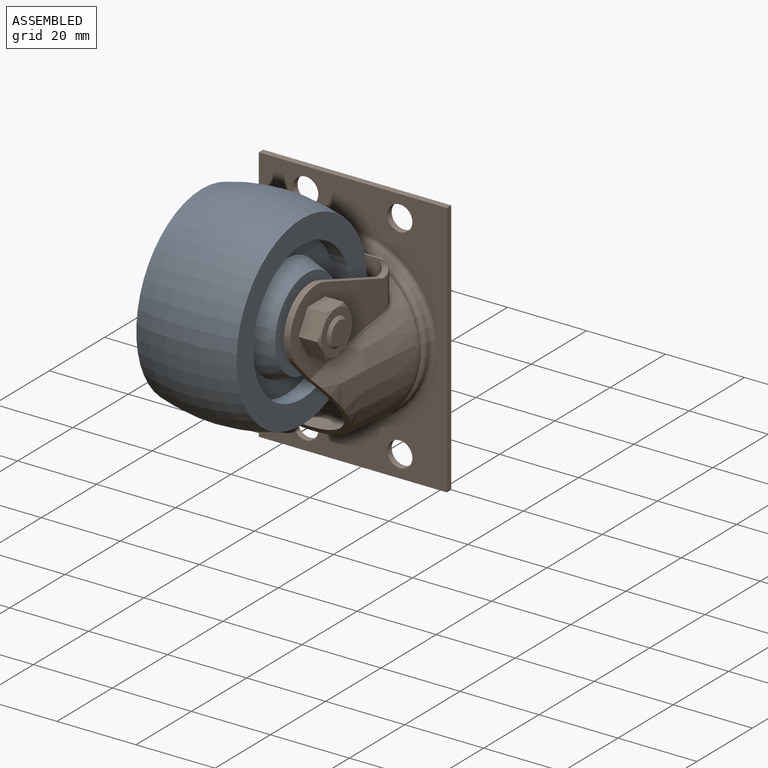
[diagram: assembled view]
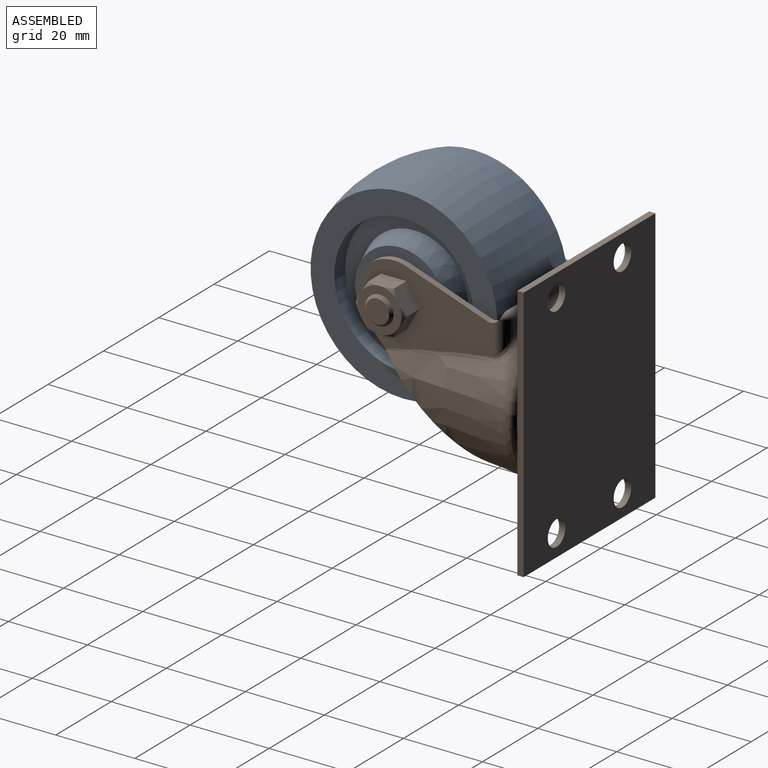
[diagram: assembled view, second angle]
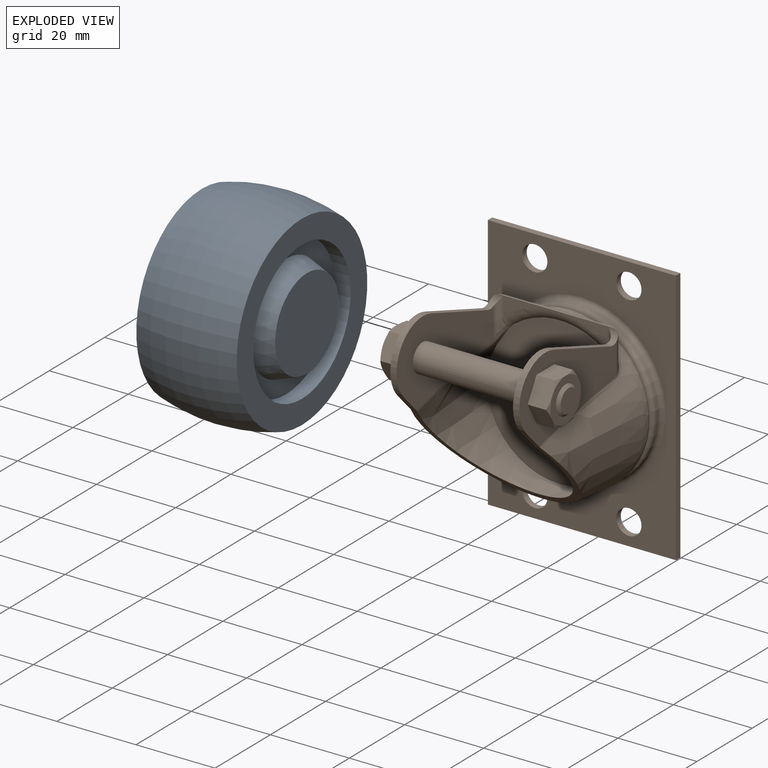
[diagram: exploded view]
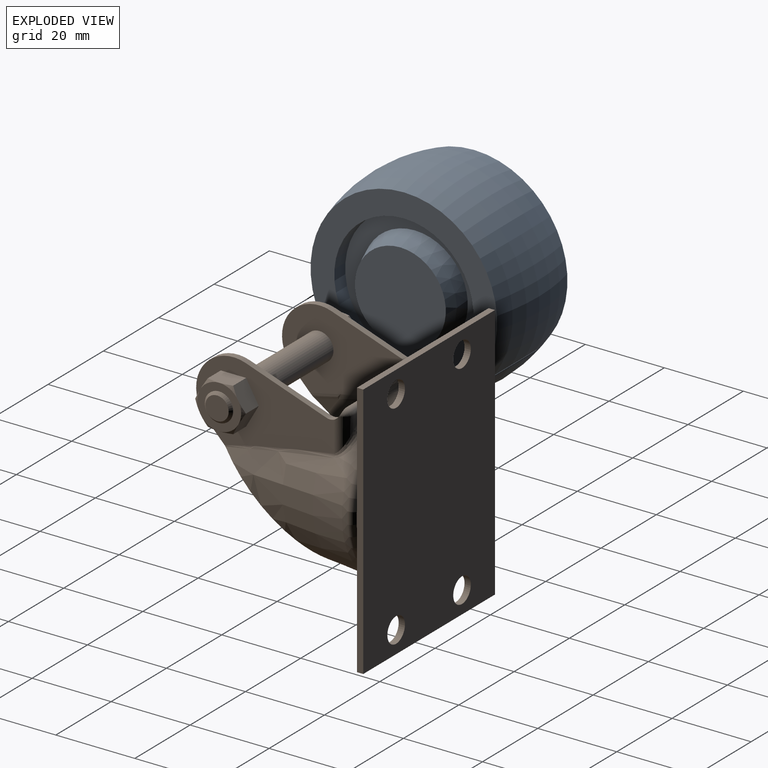
[diagram: exploded view, second angle]
ASSEMBLY  parts=2 mates=2
PART A: 11 faces, bbox 27.9x50.8x50.8 mm
  f0: cylinder r=17.63mm len=35.26mm, axis (-1,0,0), area 438.9mm2, adj f9,f10
  f1: cone r=13.41mm half-angle=20deg, axis (1,0,0), area 435.9mm2, adj f8,f9
  f2: cone r=11.51mm half-angle=20deg, axis (-1,0,0), area 435.9mm2, adj f6,f7
  f3: cylinder r=17.63mm len=35.26mm, axis (-1,0,0), area 438.9mm2, adj f5,f6
  f4: revolved ~50.8x50.8mm, area 4010.4mm2, adj f5,f10
  f5: plane 47.24x47.24mm, normal (1,0,0), area 776.8mm2, adj f3,f4
  f6: plane 35.26x35.26mm, normal (1,0,0), area 411.2mm2, adj f2,f3
  f7: plane 23.01x23.01mm, normal (1,0,0), area 415.9mm2, adj f2
  f8: plane 23.01x23.01mm, normal (-1,0,0), area 415.9mm2, adj f1
  f9: plane 35.26x35.26mm, normal (-1,0,0), area 411.2mm2, adj f0,f1
  f10: plane 47.24x47.24mm, normal (-1,0,0), area 776.8mm2, adj f0,f4
PART B: 88 faces, bbox 48.9x48.5x66 mm
  f0: cylinder r=3.58mm len=29.46mm, axis (-1,0,0), area 661.8mm2, adj f45,f46
  f1: torus R=19.05mm, axis (0,-1,0), area 223.1mm2, adj f3,f81
  f2: torus R=21.34mm, axis (0,-1,0), area 232.5mm2, adj f3,f82
  f3: cylinder r=20.19mm len=40.39mm, axis (0,1,0), area 112.8mm2, adj f1,f2
  f4: cylinder r=3.17mm len=6.35mm, axis (0,1,0), area 31.7mm2, adj f82,f87
  f5: cylinder r=3.17mm len=6.35mm, axis (0,1,0), area 31.7mm2, adj f82,f87
  f6: cylinder r=3.17mm len=6.35mm, axis (0,1,0), area 31.7mm2, adj f82,f87
  f7: cylinder r=3.17mm len=6.35mm, axis (0,1,0), area 31.7mm2, adj f82,f87
  f8: torus R=18.41mm, axis (0,1,0), area 343mm2, adj f9,f81
  f9: cylinder r=20.19mm len=40.39mm, axis (0,1,0), area 177.2mm2, adj f8,f13,f54,f55,f56
  f10: cone r=18.61mm half-angle=5deg, axis (0,1,0), area 1259.1mm2, adj f62,f64,f68,f69,f70,f73
  f11: cylinder r=9.45mm len=16mm, axis (-1,0,0), area 40mm2, adj f31,f46,f58,f62
  f12: cylinder r=9.45mm len=16mm, axis (-1,0,0), area 40mm2, adj f44,f45,f59,f62
  f13: cone r=20.19mm half-angle=5deg, axis (0,1,0), area 1471.7mm2, adj f9,f51,f52,f53,f57,f62
  f14: cone r=2.94mm half-angle=45deg, axis (-1,0,0), area 18.4mm2, adj f15,f16
  f15: cylinder r=3.58mm len=7.15mm, axis (-1,0,0), area 2.9mm2, adj f14,f17
  f16: plane 5.88x5.88mm, normal (1,0,0), area 27.2mm2, adj f14
  f17: plane 11.11x11.11mm, normal (1,0,0), area 56.8mm2, adj f15,f38,f39,f40,f41,f42,f43
  f18: plane 6.08x5.68mm, normal (0,0.87,-0.5), area 32mm2, adj f19,f23,f28,f29,f31
  f19: plane 6.08x5.68mm, normal (0,0.87,0.5), area 32mm2, adj f18,f20,f27,f28,f31
  f20: plane 6.95x5.69mm, normal (0,0,1), area 32mm2, adj f19,f21,f26,f27,f31
  f21: plane 6.08x5.68mm, normal (0,-0.87,0.5), area 32mm2, adj f20,f22,f25,f26,f31
  f22: plane 6.08x5.68mm, normal (0,-0.87,-0.5), area 32mm2, adj f21,f23,f24,f25,f31
  f23: plane 6.95x5.69mm, normal (0,0,-1), area 32mm2, adj f18,f22,f24,f29,f31
  f24: cone r=5.56mm half-angle=60deg, axis (1,0,0), area 3mm2, adj f22,f23,f30
  f25: cone r=5.56mm half-angle=60deg, axis (1,0,0), area 3mm2, adj f21,f22,f30
  f26: cone r=5.56mm half-angle=60deg, axis (1,0,0), area 3mm2, adj f20,f21,f30
  f27: cone r=5.56mm half-angle=60deg, axis (1,0,0), area 3mm2, adj f19,f20,f30
  f28: cone r=5.56mm half-angle=60deg, axis (1,0,0), area 3mm2, adj f18,f19,f30
  f29: cone r=5.56mm half-angle=60deg, axis (1,0,0), area 3mm2, adj f18,f23,f30
  f30: plane 11.11x11.11mm, normal (-1,0,0), area 97mm2, adj f24,f25,f26,f27,f28,f29
  f31: plane 34.85x20.71mm, normal (-1,0,0), area 387.6mm2, adj f11,f18,f19,f20,f21,f22,f23,f49
  f32: plane 6.08x5.68mm, normal (0,0.87,-0.5), area 32mm2, adj f33,f37,f42,f43,f44
  f33: plane 6.08x5.68mm, normal (0,0.87,0.5), area 32mm2, adj f32,f34,f41,f42,f44
  f34: plane 6.95x5.69mm, normal (0,0,1), area 32mm2, adj f33,f35,f40,f41,f44
  f35: plane 6.08x5.68mm, normal (0,-0.87,0.5), area 32mm2, adj f34,f36,f39,f40,f44
  f36: plane 6.08x5.68mm, normal (0,-0.87,-0.5), area 32mm2, adj f35,f37,f38,f39,f44
  f37: plane 6.95x5.69mm, normal (0,0,-1), area 32mm2, adj f32,f36,f38,f43,f44
  f38: cone r=5.56mm half-angle=60deg, axis (-1,0,0), area 3mm2, adj f17,f36,f37
  f39: cone r=5.56mm half-angle=60deg, axis (-1,0,0), area 3mm2, adj f17,f35,f36
  f40: cone r=5.56mm half-angle=60deg, axis (-1,0,0), area 3mm2, adj f17,f34,f35
  f41: cone r=5.56mm half-angle=60deg, axis (-1,0,0), area 3mm2, adj f17,f33,f34
  f42: cone r=5.56mm half-angle=60deg, axis (-1,0,0), area 3mm2, adj f17,f32,f33
  f43: cone r=5.56mm half-angle=60deg, axis (-1,0,0), area 3mm2, adj f17,f32,f37
  f44: plane 34.85x20.71mm, normal (1,0,0), area 387.6mm2, adj f12,f32,f33,f34,f35,f36,f37,f50
  f45: plane 34.85x20.71mm, normal (-1,0,0), area 454.4mm2, adj f0,f12,f59,f61,f62,f70,f71
  f46: plane 34.85x20.71mm, normal (1,0,0), area 454.4mm2, adj f0,f11,f58,f60,f62,f73,f74
  f47: plane 5.14x2.89mm, normal (0,1,0), area 6.6mm2, adj f50,f55,f77
  f48: plane 5.14x2.89mm, normal (0,1,0), area 6.6mm2, adj f49,f55,f79
  f49: cylinder r=3.17mm len=8.59mm, axis (0,0,1), area 28.3mm2, adj f31,f48,f56,f57,f60,f80
  f50: cylinder r=3.17mm len=8.59mm, axis (0,0,-1), area 28.3mm2, adj f44,f47,f53,f54,f61,f76
  f51: bspline ~27.96x6.02mm, area 21.3mm2, adj f13,f44,f53,f62
  f52: bspline ~27.96x6.02mm, area 21.3mm2, adj f13,f31,f57,f62
  f53: bspline ~5.64x4.76mm, area 11.2mm2, adj f13,f50,f51,f54
  f54: bspline ~2.13x1.72mm, area 2.9mm2, adj f9,f50,f53,f55
  f55: torus R=21.78mm, axis (0,-1,0), area 58.4mm2, adj f9,f47,f48,f54,f56,f78
  f56: bspline ~2.13x1.72mm, area 2.9mm2, adj f9,f49,f55,f57
  f57: bspline ~5.64x4.76mm, area 11.2mm2, adj f13,f49,f52,f56
  f58: plane 20.47x7.06mm, normal (0,0.33,0.95), area 34.4mm2, adj f11,f31,f46,f60
  f59: plane 20.47x7.06mm, normal (0,0.33,0.95), area 34.4mm2, adj f12,f44,f45,f61
  f60: cylinder r=2.59mm len=3.44mm, axis (-1,0,0), area 8.3mm2, adj f31,f46,f49,f58,f63,f74,f80
  f61: cylinder r=2.59mm len=3.44mm, axis (-1,0,0), area 8.3mm2, adj f44,f45,f50,f59,f63,f71,f76
  f62: plane 35.9x30.45mm, normal (0,-0.72,-0.69), area 181.7mm2, adj f10,f11,f12,f13,f31,f44,f45,f46
  f63: plane 27.2x0.46mm, normal (0,0,1), area 5mm2, adj f60,f61,f72,f75,f76,f77,f78,f79
  f64: plane 38.4x37.83mm, normal (0,-1,0), area 1086.9mm2, adj f10,f65,f66,f67,f68,f69
  f65: torus R=21.78mm, axis (0,-1,0), area 87.3mm2, adj f64,f66,f67,f72,f75
  f66: bspline ~2.95x2.05mm, area 2.7mm2, adj f64,f65,f69,f74
  f67: bspline ~2.95x2.05mm, area 2.7mm2, adj f64,f65,f68,f71
  f68: bspline ~6.5x4.9mm, area 15.9mm2, adj f10,f64,f67,f70,f71
  f69: bspline ~6.5x4.9mm, area 15.8mm2, adj f10,f64,f66,f73,f74
  f70: bspline ~28.1x6.54mm, area 42.3mm2, adj f10,f45,f62,f68
  f71: cylinder r=1.59mm len=10.12mm, axis (0,0,-1), area 15.2mm2, adj f45,f61,f67,f68,f72
  f72: plane 13.14x4.41mm, normal (0,-1,0), area 18.5mm2, adj f63,f65,f71
  f73: bspline ~28.1x6.54mm, area 42.3mm2, adj f10,f46,f62,f69
  f74: cylinder r=1.59mm len=10.12mm, axis (0,0,1), area 15.2mm2, adj f46,f60,f66,f69,f75
  f75: plane 13.14x4.41mm, normal (0,-1,0), area 18.5mm2, adj f63,f65,f74
  f76: torus R=1.65mm, axis (0,0,1), area 6mm2, adj f50,f61,f63,f77
  f77: cylinder r=1.52mm len=5.14mm, axis (1,0,0), area 12.3mm2, adj f47,f63,f76,f78
  f78: bspline ~16.01x1.73mm, area 30.2mm2, adj f55,f63,f77,f79
  f79: cylinder r=1.52mm len=5.14mm, axis (1,0,0), area 12.3mm2, adj f48,f63,f78,f80
  f80: torus R=1.65mm, axis (0,0,1), area 6mm2, adj f49,f60,f63,f79
  f81: plane 38.1x38.1mm, normal (0,-1,0), area 74.7mm2, adj f1,f8
  f82: plane 65.09x47.63mm, normal (0,-1,0), area 1543mm2, adj f2,f4,f5,f6,f7,f83,f84,f85
  f83: plane 65.09x1.59mm, normal (-1,0,0), area 103.3mm2, adj f82,f84,f86,f87
  f84: plane 47.63x1.59mm, normal (0,0,-1), area 75.6mm2, adj f82,f83,f85,f87
  f85: plane 65.09x1.59mm, normal (1,0,0), area 103.3mm2, adj f82,f84,f86,f87
  f86: plane 47.63x1.59mm, normal (0,0,1), area 75.6mm2, adj f82,f83,f85,f87
  f87: plane 65.09x47.63mm, normal (0,1,0), area 2973.1mm2, adj f4,f5,f6,f7,f83,f84,f85,f86
PLACE A t=(0,-1.01,15.04)mm
PLACE B t=(0,-1.01,15.04)mm
MATE planar A.f0 <-> B.f0  axis (-1,0,0) through (0,-1.01,15.04)mm
MATE cylindrical A.f0 <-> B.f0  axis (-1,0,0) through (0,-1.01,15.04)mm
